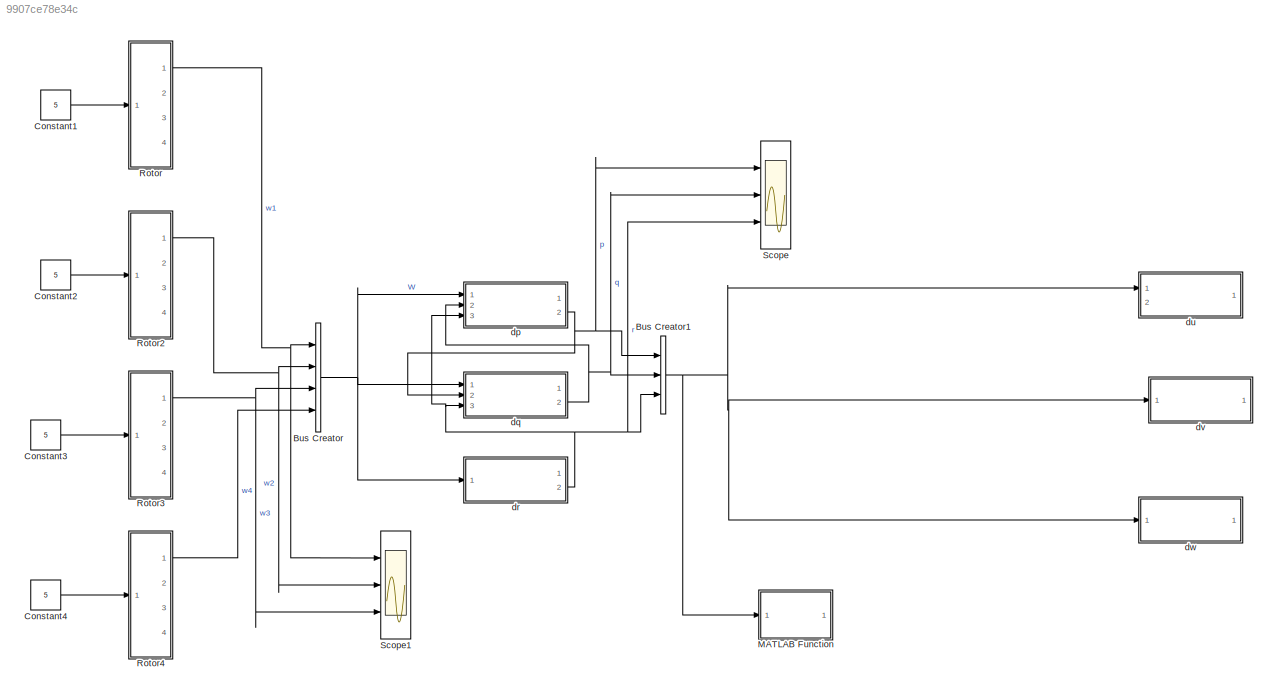
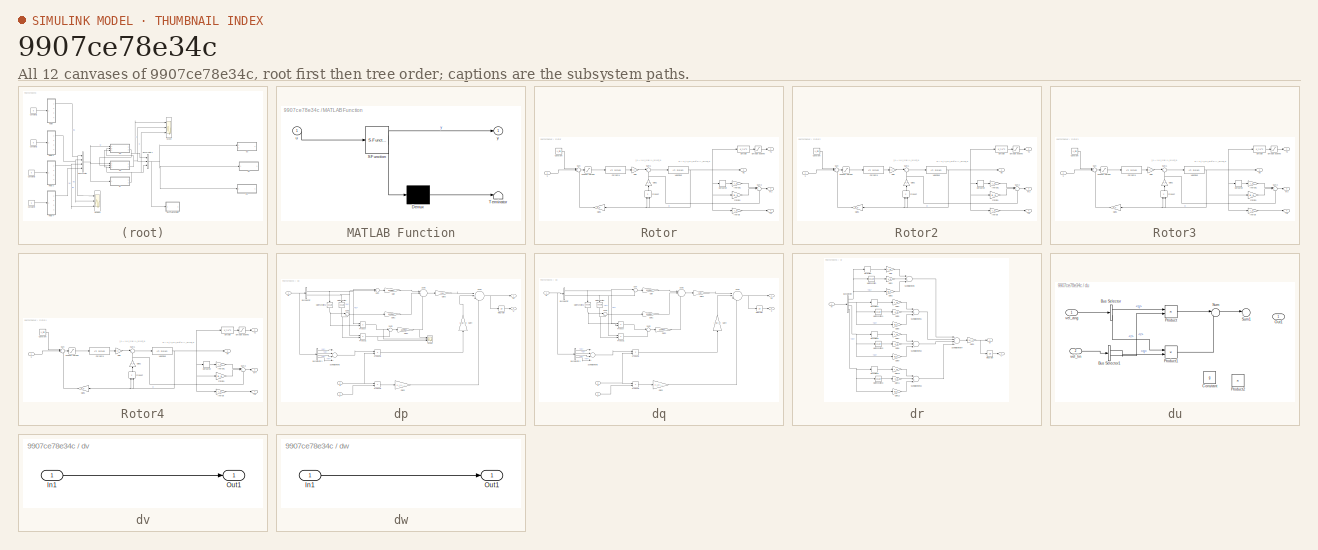
[diagram: thumbnail index - all 12 canvases of the model, root first then tree order]
MODEL slx_9907ce78e34c
KIND model
CONFIG InitFcn = k_d = 1.18e-7\nB_a = 1.23e-6\nu_min = 1.25\nk_t = 3.7e-3\nk_v = 7.8e-3\nL_a = 1.9e-3\nI_G = 1.5e-5\nR_a = 260e-3\nm = 0.694\nl_a = 0.18\nI_x = 5.87e-3\nI_y = 5.87e-3\nI_z = 10.73e-3\ngamma0 = -47.7e-3\ngamma1=1.3e-3\ngamma2=-1.44e-6\ngamma3=5.19e-4\ng=9.8\ndelta_t=1e-4\n\n
BLOCK [BusCreator] Bus Creator
  DisplayOption = bar
  Ports = [4, 1]
BLOCK [BusCreator] Bus Creator1
  DisplayOption = bar
  Inputs = 3
  Ports = [3, 1]
BLOCK [Constant] Constant1
  Value = 5
BLOCK [Constant] Constant2
  Value = 5
BLOCK [Constant] Constant3
  Value = 5
BLOCK [Constant] Constant4
  Value = 5
BLOCK [SubSystem] MATLAB Function
  ErrorFcn = Stateflow.Translate.translate
  FunctionWithSeparateData = off
  MaskHideContents = off
  MinAlgLoopOccurrences = off
  Opaque = off
  PermitHierarchicalResolution = ExplicitOnly
  Ports = [1, 1]
  PropExecContextOutsideSubsystem = off
  RTWSystemCode = Auto
  RequestExecContextInheritance = off
  SFBlockType = MATLAB Function
  TreatAsAtomicUnit = on
BLOCK [Demux] MATLAB Function/ Demux 
  Outputs = 1
  Ports = [1, 1]
BLOCK [S-Function] MATLAB Function/ SFunction 
  EnableBusSupport = off
  FunctionName = sf_sfun
  PortCounts = [1 2]
  Ports = [1, 2]
  Tag = Stateflow S-Function rotationmatrix 2
BLOCK [Terminator] MATLAB Function/ Terminator 
BLOCK [Inport] MATLAB Function/u
  IconDisplay = Port number
BLOCK [Outport] MATLAB Function/y
  IconDisplay = Port number
BLOCK [SubSystem] Rotor
  FunctionWithSeparateData = off
  MaskHideContents = off
  MinAlgLoopOccurrences = off
  Opaque = off
  Ports = [1, 4]
  PropExecContextOutsideSubsystem = off
  RTWSystemCode = Auto
  RequestExecContextInheritance = off
BLOCK [Constant] Rotor/Constant
  Value = u_min
BLOCK [Reference] Rotor/Corriente  REF=cstblocks/LTI System
  IC = []
  Ports = [1, 1]
  SourceBlock = cstblocks/LTI System
  SourceType = LTI Block
  sys = tf(1,[L_a R_a])
BLOCK [Derivative] Rotor/Derivative
BLOCK [Fcn] Rotor/Empuje
  Expr = k_t*u^2
BLOCK [Saturate] Rotor/Empuje positivo
  InputPortMap = u0
  LowerLimit = 0
  Ports = [1, 1]
  UpperLimit = inf
BLOCK [Gain] Rotor/Friccion
  Gain = B_a
  OutDataTypeStr = Inherit: Inherit via internal rule
  ParamDataTypeStr = Inherit: Inherit via internal rule
  SaturateOnIntegerOverflow = off
BLOCK [Gain] Rotor/Gain
  Gain = k_t
  OutDataTypeStr = Inherit: Inherit via internal rule
  ParamDataTypeStr = Inherit: Inherit via internal rule
  SaturateOnIntegerOverflow = off
BLOCK [Gain] Rotor/Gain1
  Gain = k_v
  OutDataTypeStr = Inherit: Inherit via internal rule
  ParamDataTypeStr = Inherit: Inherit via internal rule
  SaturateOnIntegerOverflow = off
BLOCK [Gain] Rotor/Gain2
  Gain = k_d
  OutDataTypeStr = Inherit: Inherit via internal rule
  ParamDataTypeStr = Inherit: Inherit via internal rule
  SaturateOnIntegerOverflow = off
BLOCK [Gain] Rotor/Inercia
  Gain = I_G
  OutDataTypeStr = Inherit: Inherit via internal rule
  ParamDataTypeStr = Inherit: Inherit via internal rule
  SaturateOnIntegerOverflow = off
BLOCK [Gain] Rotor/Inercia1
  Gain = I_G
  OutDataTypeStr = Inherit: Inherit via internal rule
  ParamDataTypeStr = Inherit: Inherit via internal rule
  SaturateOnIntegerOverflow = off
BLOCK [Outport] Rotor/L1
  IconDisplay = Port number
  Port = 4
BLOCK [Outport] Rotor/M1
  IconDisplay = Port number
  Port = 3
BLOCK [Saturate] Rotor/Positive Voltage
  InputPortMap = u0
  LowerLimit = 0
  Ports = [1, 1]
  UpperLimit = 30
BLOCK [Product] Rotor/Product
  InputSameDT = off
  OutDataTypeStr = Inherit: Inherit via internal rule
  Ports = [2, 1]
  RndMeth = Floor
  SaturateOnIntegerOverflow = off
BLOCK [Sum] Rotor/Sum
  IconShape = round
  InputSameDT = off
  Inputs = |++-
  OutDataTypeStr = Inherit: Inherit via internal rule
  Ports = [3, 1]
  SaturateOnIntegerOverflow = off
BLOCK [Sum] Rotor/Sum1
  IconShape = round
  InputSameDT = off
  Inputs = |+-
  OutDataTypeStr = Inherit: Inherit via internal rule
  Ports = [2, 1]
  SaturateOnIntegerOverflow = off
BLOCK [Sum] Rotor/Sum2
  IconShape = round
  InputSameDT = off
  Inputs = |+++
  OutDataTypeStr = Inherit: Inherit via internal rule
  Ports = [3, 1]
  SaturateOnIntegerOverflow = off
BLOCK [Outport] Rotor/T1
  IconDisplay = Port number
  Port = 2
BLOCK [Reference] Rotor/Velocidad  REF=cstblocks/LTI System
  IC = []
  Ports = [1, 1]
  SourceBlock = cstblocks/LTI System
  SourceType = LTI Block
  sys = tf(1,[I_G B_a])
BLOCK [Inport] Rotor/u
  IconDisplay = Port number
BLOCK [Outport] Rotor/w1
  IconDisplay = Port number
BLOCK [SubSystem] Rotor2
  FunctionWithSeparateData = off
  MaskHideContents = off
  MinAlgLoopOccurrences = off
  Opaque = off
  Ports = [1, 4]
  PropExecContextOutsideSubsystem = off
  RTWSystemCode = Auto
  RequestExecContextInheritance = off
BLOCK [Constant] Rotor2/Constant
  Value = u_min
BLOCK [Reference] Rotor2/Corriente  REF=cstblocks/LTI System
  IC = []
  Ports = [1, 1]
  SourceBlock = cstblocks/LTI System
  SourceType = LTI Block
  sys = tf(1,[L_a R_a])
BLOCK [Derivative] Rotor2/Derivative
BLOCK [Fcn] Rotor2/Empuje
  Expr = k_t*u^2
BLOCK [Saturate] Rotor2/Empuje positivo
  InputPortMap = u0
  LowerLimit = 0
  Ports = [1, 1]
  UpperLimit = inf
BLOCK [Gain] Rotor2/Friccion
  Gain = B_a
  OutDataTypeStr = Inherit: Inherit via internal rule
  ParamDataTypeStr = Inherit: Inherit via internal rule
  SaturateOnIntegerOverflow = off
BLOCK [Gain] Rotor2/Gain
  Gain = k_t
  OutDataTypeStr = Inherit: Inherit via internal rule
  ParamDataTypeStr = Inherit: Inherit via internal rule
  SaturateOnIntegerOverflow = off
BLOCK [Gain] Rotor2/Gain1
  Gain = k_v
  OutDataTypeStr = Inherit: Inherit via internal rule
  ParamDataTypeStr = Inherit: Inherit via internal rule
  SaturateOnIntegerOverflow = off
BLOCK [Gain] Rotor2/Gain2
  Gain = k_d
  OutDataTypeStr = Inherit: Inherit via internal rule
  ParamDataTypeStr = Inherit: Inherit via internal rule
  SaturateOnIntegerOverflow = off
BLOCK [Gain] Rotor2/Inercia
  Gain = I_G
  OutDataTypeStr = Inherit: Inherit via internal rule
  ParamDataTypeStr = Inherit: Inherit via internal rule
  SaturateOnIntegerOverflow = off
BLOCK [Gain] Rotor2/Inercia1
  Gain = I_G
  OutDataTypeStr = Inherit: Inherit via internal rule
  ParamDataTypeStr = Inherit: Inherit via internal rule
  SaturateOnIntegerOverflow = off
BLOCK [Outport] Rotor2/L2
  IconDisplay = Port number
  Port = 4
BLOCK [Outport] Rotor2/M2
  IconDisplay = Port number
  Port = 3
BLOCK [Saturate] Rotor2/Positive Voltage
  InputPortMap = u0
  LowerLimit = 0
  Ports = [1, 1]
  UpperLimit = 30
BLOCK [Product] Rotor2/Product
  InputSameDT = off
  OutDataTypeStr = Inherit: Inherit via internal rule
  Ports = [2, 1]
  RndMeth = Floor
  SaturateOnIntegerOverflow = off
BLOCK [Sum] Rotor2/Sum
  IconShape = round
  InputSameDT = off
  Inputs = |++-
  OutDataTypeStr = Inherit: Inherit via internal rule
  Ports = [3, 1]
  SaturateOnIntegerOverflow = off
BLOCK [Sum] Rotor2/Sum1
  IconShape = round
  InputSameDT = off
  Inputs = |+-
  OutDataTypeStr = Inherit: Inherit via internal rule
  Ports = [2, 1]
  SaturateOnIntegerOverflow = off
BLOCK [Sum] Rotor2/Sum2
  IconShape = round
  InputSameDT = off
  Inputs = |+++
  OutDataTypeStr = Inherit: Inherit via internal rule
  Ports = [3, 1]
  SaturateOnIntegerOverflow = off
BLOCK [Outport] Rotor2/T2
  IconDisplay = Port number
  Port = 2
BLOCK [Reference] Rotor2/Velocidad  REF=cstblocks/LTI System
  IC = []
  Ports = [1, 1]
  SourceBlock = cstblocks/LTI System
  SourceType = LTI Block
  sys = tf(1,[I_G B_a])
BLOCK [Inport] Rotor2/u
  IconDisplay = Port number
BLOCK [Outport] Rotor2/w2
  IconDisplay = Port number
BLOCK [SubSystem] Rotor3
  FunctionWithSeparateData = off
  MaskHideContents = off
  MinAlgLoopOccurrences = off
  Opaque = off
  Ports = [1, 4]
  PropExecContextOutsideSubsystem = off
  RTWSystemCode = Auto
  RequestExecContextInheritance = off
BLOCK [Constant] Rotor3/Constant
  Value = u_min
BLOCK [Reference] Rotor3/Corriente  REF=cstblocks/LTI System
  IC = []
  Ports = [1, 1]
  SourceBlock = cstblocks/LTI System
  SourceType = LTI Block
  sys = tf(1,[L_a R_a])
BLOCK [Derivative] Rotor3/Derivative
BLOCK [Fcn] Rotor3/Empuje
  Expr = k_t*u^2
BLOCK [Saturate] Rotor3/Empuje positivo
  InputPortMap = u0
  LowerLimit = 0
  Ports = [1, 1]
  UpperLimit = inf
BLOCK [Gain] Rotor3/Friccion
  Gain = B_a
  OutDataTypeStr = Inherit: Inherit via internal rule
  ParamDataTypeStr = Inherit: Inherit via internal rule
  SaturateOnIntegerOverflow = off
BLOCK [Gain] Rotor3/Gain
  Gain = k_t
  OutDataTypeStr = Inherit: Inherit via internal rule
  ParamDataTypeStr = Inherit: Inherit via internal rule
  SaturateOnIntegerOverflow = off
BLOCK [Gain] Rotor3/Gain1
  Gain = k_v
  OutDataTypeStr = Inherit: Inherit via internal rule
  ParamDataTypeStr = Inherit: Inherit via internal rule
  SaturateOnIntegerOverflow = off
BLOCK [Gain] Rotor3/Gain2
  Gain = k_d
  OutDataTypeStr = Inherit: Inherit via internal rule
  ParamDataTypeStr = Inherit: Inherit via internal rule
  SaturateOnIntegerOverflow = off
BLOCK [Gain] Rotor3/Inercia
  Gain = I_G
  OutDataTypeStr = Inherit: Inherit via internal rule
  ParamDataTypeStr = Inherit: Inherit via internal rule
  SaturateOnIntegerOverflow = off
BLOCK [Gain] Rotor3/Inercia1
  Gain = I_G
  OutDataTypeStr = Inherit: Inherit via internal rule
  ParamDataTypeStr = Inherit: Inherit via internal rule
  SaturateOnIntegerOverflow = off
BLOCK [Outport] Rotor3/L3
  IconDisplay = Port number
  Port = 4
BLOCK [Outport] Rotor3/M3
  IconDisplay = Port number
  Port = 3
BLOCK [Saturate] Rotor3/Positive Voltage
  InputPortMap = u0
  LowerLimit = 0
  Ports = [1, 1]
  UpperLimit = 30
BLOCK [Product] Rotor3/Product
  InputSameDT = off
  OutDataTypeStr = Inherit: Inherit via internal rule
  Ports = [2, 1]
  RndMeth = Floor
  SaturateOnIntegerOverflow = off
BLOCK [Sum] Rotor3/Sum
  IconShape = round
  InputSameDT = off
  Inputs = |++-
  OutDataTypeStr = Inherit: Inherit via internal rule
  Ports = [3, 1]
  SaturateOnIntegerOverflow = off
BLOCK [Sum] Rotor3/Sum1
  IconShape = round
  InputSameDT = off
  Inputs = |+-
  OutDataTypeStr = Inherit: Inherit via internal rule
  Ports = [2, 1]
  SaturateOnIntegerOverflow = off
BLOCK [Sum] Rotor3/Sum2
  IconShape = round
  InputSameDT = off
  Inputs = |+++
  OutDataTypeStr = Inherit: Inherit via internal rule
  Ports = [3, 1]
  SaturateOnIntegerOverflow = off
BLOCK [Outport] Rotor3/T3
  IconDisplay = Port number
  Port = 2
BLOCK [Reference] Rotor3/Velocidad  REF=cstblocks/LTI System
  IC = []
  Ports = [1, 1]
  SourceBlock = cstblocks/LTI System
  SourceType = LTI Block
  sys = tf(1,[I_G B_a])
BLOCK [Inport] Rotor3/u
  IconDisplay = Port number
BLOCK [Outport] Rotor3/w3
  IconDisplay = Port number
BLOCK [SubSystem] Rotor4
  FunctionWithSeparateData = off
  MaskHideContents = off
  MinAlgLoopOccurrences = off
  Opaque = off
  Ports = [1, 4]
  PropExecContextOutsideSubsystem = off
  RTWSystemCode = Auto
  RequestExecContextInheritance = off
BLOCK [Constant] Rotor4/Constant
  Value = u_min
BLOCK [Reference] Rotor4/Corriente  REF=cstblocks/LTI System
  IC = []
  Ports = [1, 1]
  SourceBlock = cstblocks/LTI System
  SourceType = LTI Block
  sys = tf(1,[L_a R_a])
BLOCK [Derivative] Rotor4/Derivative
BLOCK [Fcn] Rotor4/Empuje
  Expr = k_t*u^2
BLOCK [Saturate] Rotor4/Empuje positivo
  InputPortMap = u0
  LowerLimit = 0
  Ports = [1, 1]
  UpperLimit = inf
BLOCK [Gain] Rotor4/Friccion
  Gain = B_a
  OutDataTypeStr = Inherit: Inherit via internal rule
  ParamDataTypeStr = Inherit: Inherit via internal rule
  SaturateOnIntegerOverflow = off
BLOCK [Gain] Rotor4/Gain
  Gain = k_t
  OutDataTypeStr = Inherit: Inherit via internal rule
  ParamDataTypeStr = Inherit: Inherit via internal rule
  SaturateOnIntegerOverflow = off
BLOCK [Gain] Rotor4/Gain1
  Gain = k_v
  OutDataTypeStr = Inherit: Inherit via internal rule
  ParamDataTypeStr = Inherit: Inherit via internal rule
  SaturateOnIntegerOverflow = off
BLOCK [Gain] Rotor4/Gain2
  Gain = k_d
  OutDataTypeStr = Inherit: Inherit via internal rule
  ParamDataTypeStr = Inherit: Inherit via internal rule
  SaturateOnIntegerOverflow = off
BLOCK [Gain] Rotor4/Inercia
  Gain = I_G
  OutDataTypeStr = Inherit: Inherit via internal rule
  ParamDataTypeStr = Inherit: Inherit via internal rule
  SaturateOnIntegerOverflow = off
BLOCK [Gain] Rotor4/Inercia1
  Gain = I_G
  OutDataTypeStr = Inherit: Inherit via internal rule
  ParamDataTypeStr = Inherit: Inherit via internal rule
  SaturateOnIntegerOverflow = off
BLOCK [Outport] Rotor4/L4
  IconDisplay = Port number
  Port = 4
BLOCK [Outport] Rotor4/M4
  IconDisplay = Port number
  Port = 3
BLOCK [Saturate] Rotor4/Positive Voltage
  InputPortMap = u0
  LowerLimit = 0
  Ports = [1, 1]
  UpperLimit = 30
BLOCK [Product] Rotor4/Product
  InputSameDT = off
  OutDataTypeStr = Inherit: Inherit via internal rule
  Ports = [2, 1]
  RndMeth = Floor
  SaturateOnIntegerOverflow = off
BLOCK [Sum] Rotor4/Sum
  IconShape = round
  InputSameDT = off
  Inputs = |++-
  OutDataTypeStr = Inherit: Inherit via internal rule
  Ports = [3, 1]
  SaturateOnIntegerOverflow = off
BLOCK [Sum] Rotor4/Sum1
  IconShape = round
  InputSameDT = off
  Inputs = |+-
  OutDataTypeStr = Inherit: Inherit via internal rule
  Ports = [2, 1]
  SaturateOnIntegerOverflow = off
BLOCK [Sum] Rotor4/Sum2
  IconShape = round
  InputSameDT = off
  Inputs = |+++
  OutDataTypeStr = Inherit: Inherit via internal rule
  Ports = [3, 1]
  SaturateOnIntegerOverflow = off
BLOCK [Outport] Rotor4/T4
  IconDisplay = Port number
  Port = 2
BLOCK [Reference] Rotor4/Velocidad  REF=cstblocks/LTI System
  IC = []
  Ports = [1, 1]
  SourceBlock = cstblocks/LTI System
  SourceType = LTI Block
  sys = tf(1,[I_G B_a])
BLOCK [Inport] Rotor4/u
  IconDisplay = Port number
BLOCK [Outport] Rotor4/w4
  IconDisplay = Port number
BLOCK [Scope] Scope
  DataFormat = StructureWithTime
  Floating = off
  LimitDataPoints = off
  NumInputPorts = 3
  Ports = [3]
  SampleTime = 0
  ShowLegends = off
  YMax = 5~5~5
  YMin = -5~-5~-5
BLOCK [Scope] Scope1
  DataFormat = StructureWithTime
  Floating = off
  LimitDataPoints = off
  NumInputPorts = 3
  Ports = [3]
  SampleTime = 0
  SaveName = ScopeData3
  ShowLegends = off
  YMax = 5~5~5
  YMin = -5~-5~-5
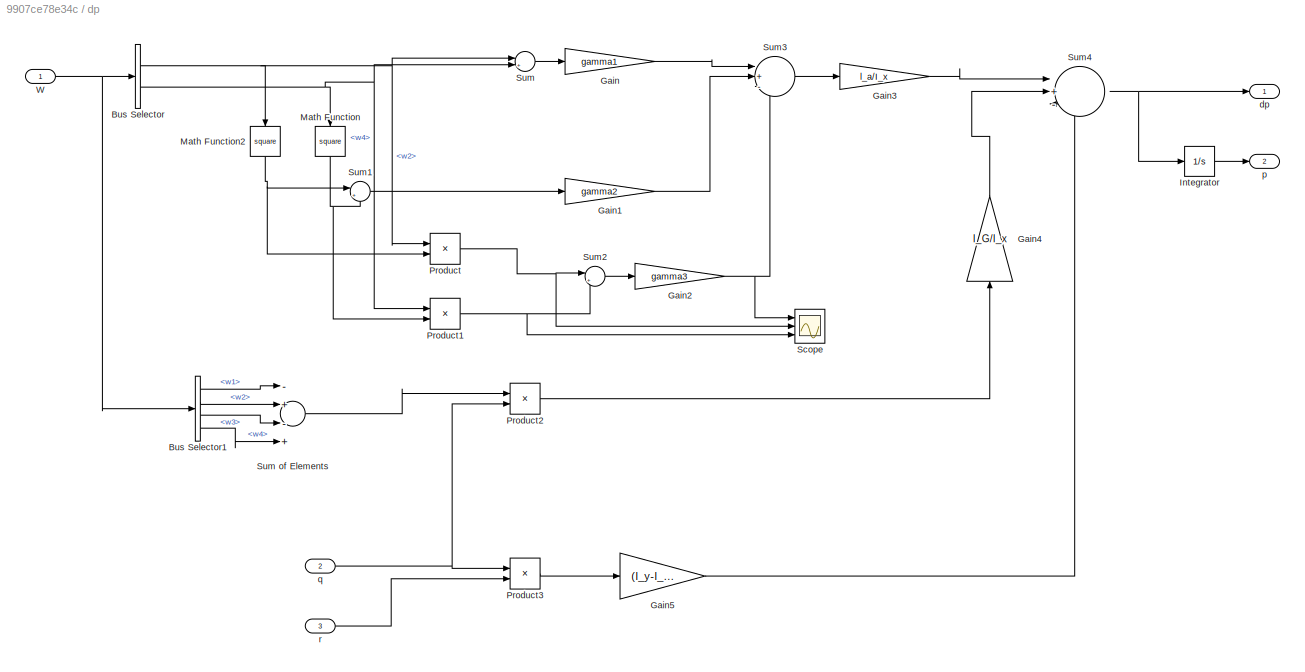
BLOCK [SubSystem] dp
  FunctionWithSeparateData = off
  MaskHideContents = off
  MinAlgLoopOccurrences = off
  Opaque = off
  Ports = [3, 2]
  PropExecContextOutsideSubsystem = off
  RTWSystemCode = Auto
  RequestExecContextInheritance = off
BLOCK [BusSelector] dp/Bus Selector
  OutputSignals = w2,w4
  Ports = [1, 2]
BLOCK [BusSelector] dp/Bus Selector1
  OutputSignals = w1,w2,w3,w4
  Ports = [1, 4]
BLOCK [Gain] dp/Gain
  Gain = gamma1
  OutDataTypeStr = Inherit: Inherit via internal rule
  ParamDataTypeStr = Inherit: Inherit via internal rule
  SaturateOnIntegerOverflow = off
BLOCK [Gain] dp/Gain1
  Gain = gamma2
  OutDataTypeStr = Inherit: Inherit via internal rule
  ParamDataTypeStr = Inherit: Inherit via internal rule
  SaturateOnIntegerOverflow = off
BLOCK [Gain] dp/Gain2
  Gain = gamma3
  OutDataTypeStr = Inherit: Inherit via internal rule
  ParamDataTypeStr = Inherit: Inherit via internal rule
  SaturateOnIntegerOverflow = off
BLOCK [Gain] dp/Gain3
  Gain = l_a/I_x
  OutDataTypeStr = Inherit: Inherit via internal rule
  ParamDataTypeStr = Inherit: Inherit via internal rule
  SaturateOnIntegerOverflow = off
BLOCK [Gain] dp/Gain4
  Gain = I_G/I_x
  OutDataTypeStr = Inherit: Inherit via internal rule
  ParamDataTypeStr = Inherit: Inherit via internal rule
  SaturateOnIntegerOverflow = off
BLOCK [Gain] dp/Gain5
  Gain = (I_y-I_z)/I_x
  OutDataTypeStr = Inherit: Inherit via internal rule
  ParamDataTypeStr = Inherit: Inherit via internal rule
  SaturateOnIntegerOverflow = off
BLOCK [Integrator] dp/Integrator
  Ports = [1, 1]
BLOCK [Math] dp/Math Function
  Operator = square
  Ports = [1, 1]
BLOCK [Math] dp/Math Function2
  Operator = square
  Ports = [1, 1]
BLOCK [Product] dp/Product
  InputSameDT = off
  OutDataTypeStr = Inherit: Inherit via internal rule
  Ports = [2, 1]
  RndMeth = Floor
  SaturateOnIntegerOverflow = off
BLOCK [Product] dp/Product1
  InputSameDT = off
  OutDataTypeStr = Inherit: Inherit via internal rule
  Ports = [2, 1]
  RndMeth = Floor
  SaturateOnIntegerOverflow = off
BLOCK [Product] dp/Product2
  InputSameDT = off
  OutDataTypeStr = Inherit: Inherit via internal rule
  Ports = [2, 1]
  RndMeth = Floor
  SaturateOnIntegerOverflow = off
BLOCK [Product] dp/Product3
  InputSameDT = off
  OutDataTypeStr = Inherit: Inherit via internal rule
  Ports = [2, 1]
  RndMeth = Floor
  SaturateOnIntegerOverflow = off
BLOCK [Scope] dp/Scope
  DataFormat = StructureWithTime
  Floating = off
  LimitDataPoints = off
  NumInputPorts = 3
  Ports = [3]
  SampleTime = 0
  SaveName = ScopeData2
  ShowLegends = off
  YMax = 5~5~5
  YMin = -5~-5~-5
BLOCK [Sum] dp/Sum
  IconShape = round
  InputSameDT = off
  Inputs = |+-
  OutDataTypeStr = Inherit: Inherit via internal rule
  Ports = [2, 1]
  SaturateOnIntegerOverflow = off
BLOCK [Sum] dp/Sum of Elements
  InputSameDT = off
  Inputs = -+-+
  OutDataTypeStr = Inherit: Inherit via internal rule
  Ports = [4, 1]
  SaturateOnIntegerOverflow = off
BLOCK [Sum] dp/Sum1
  IconShape = round
  InputSameDT = off
  Inputs = |+-
  OutDataTypeStr = Inherit: Inherit via internal rule
  Ports = [2, 1]
  SaturateOnIntegerOverflow = off
BLOCK [Sum] dp/Sum2
  IconShape = round
  InputSameDT = off
  Inputs = |+-
  OutDataTypeStr = Inherit: Inherit via internal rule
  Ports = [2, 1]
  SaturateOnIntegerOverflow = off
BLOCK [Sum] dp/Sum3
  IconShape = round
  InputSameDT = off
  Inputs = |+-+
  OutDataTypeStr = Inherit: Inherit via internal rule
  Ports = [3, 1]
  SaturateOnIntegerOverflow = off
BLOCK [Sum] dp/Sum4
  IconShape = round
  InputSameDT = off
  Inputs = |+-+
  OutDataTypeStr = Inherit: Inherit via internal rule
  Ports = [3, 1]
  SaturateOnIntegerOverflow = off
BLOCK [Inport] dp/W
  IconDisplay = Port number
BLOCK [Outport] dp/dp
  IconDisplay = Port number
BLOCK [Outport] dp/p
  IconDisplay = Port number
  Port = 2
BLOCK [Inport] dp/q 
  IconDisplay = Port number
  Port = 2
BLOCK [Inport] dp/r
  IconDisplay = Port number
  Port = 3
BLOCK [SubSystem] dq
  FunctionWithSeparateData = off
  MaskHideContents = off
  MinAlgLoopOccurrences = off
  Opaque = off
  Ports = [3, 2]
  PropExecContextOutsideSubsystem = off
  RTWSystemCode = Auto
  RequestExecContextInheritance = off
BLOCK [BusSelector] dq/Bus Selector
  OutputSignals = w3,w1
  Ports = [1, 2]
BLOCK [BusSelector] dq/Bus Selector1
  OutputSignals = w1,w2,w3,w4
  Ports = [1, 4]
BLOCK [Gain] dq/Gain
  Gain = gamma1
  OutDataTypeStr = Inherit: Inherit via internal rule
  ParamDataTypeStr = Inherit: Inherit via internal rule
  SaturateOnIntegerOverflow = off
BLOCK [Gain] dq/Gain1
  Gain = gamma2
  OutDataTypeStr = Inherit: Inherit via internal rule
  ParamDataTypeStr = Inherit: Inherit via internal rule
  SaturateOnIntegerOverflow = off
BLOCK [Gain] dq/Gain2
  Gain = gamma3
  OutDataTypeStr = Inherit: Inherit via internal rule
  ParamDataTypeStr = Inherit: Inherit via internal rule
  SaturateOnIntegerOverflow = off
BLOCK [Gain] dq/Gain3
  Gain = l_a/I_y
  OutDataTypeStr = Inherit: Inherit via internal rule
  ParamDataTypeStr = Inherit: Inherit via internal rule
  SaturateOnIntegerOverflow = off
BLOCK [Gain] dq/Gain4
  Gain = I_G/I_y
  OutDataTypeStr = Inherit: Inherit via internal rule
  ParamDataTypeStr = Inherit: Inherit via internal rule
  SaturateOnIntegerOverflow = off
BLOCK [Gain] dq/Gain5
  Gain = (I_x-I_z)/I_y
  OutDataTypeStr = Inherit: Inherit via internal rule
  ParamDataTypeStr = Inherit: Inherit via internal rule
  SaturateOnIntegerOverflow = off
BLOCK [Integrator] dq/Integrator
  Ports = [1, 1]
BLOCK [Math] dq/Math Function
  Operator = square
  Ports = [1, 1]
BLOCK [Math] dq/Math Function2
  Operator = square
  Ports = [1, 1]
BLOCK [Product] dq/Product
  InputSameDT = off
  OutDataTypeStr = Inherit: Inherit via internal rule
  Ports = [2, 1]
  RndMeth = Floor
  SaturateOnIntegerOverflow = off
BLOCK [Product] dq/Product1
  InputSameDT = off
  OutDataTypeStr = Inherit: Inherit via internal rule
  Ports = [2, 1]
  RndMeth = Floor
  SaturateOnIntegerOverflow = off
BLOCK [Product] dq/Product2
  InputSameDT = off
  OutDataTypeStr = Inherit: Inherit via internal rule
  Ports = [2, 1]
  RndMeth = Floor
  SaturateOnIntegerOverflow = off
BLOCK [Product] dq/Product3
  InputSameDT = off
  OutDataTypeStr = Inherit: Inherit via internal rule
  Ports = [2, 1]
  RndMeth = Floor
  SaturateOnIntegerOverflow = off
BLOCK [Sum] dq/Sum
  IconShape = round
  InputSameDT = off
  Inputs = |+-
  OutDataTypeStr = Inherit: Inherit via internal rule
  Ports = [2, 1]
  SaturateOnIntegerOverflow = off
BLOCK [Sum] dq/Sum of Elements
  InputSameDT = off
  Inputs = -+-+
  OutDataTypeStr = Inherit: Inherit via internal rule
  Ports = [4, 1]
  SaturateOnIntegerOverflow = off
BLOCK [Sum] dq/Sum1
  IconShape = round
  InputSameDT = off
  Inputs = |+-
  OutDataTypeStr = Inherit: Inherit via internal rule
  Ports = [2, 1]
  SaturateOnIntegerOverflow = off
BLOCK [Sum] dq/Sum2
  IconShape = round
  InputSameDT = off
  Inputs = |+-
  OutDataTypeStr = Inherit: Inherit via internal rule
  Ports = [2, 1]
  SaturateOnIntegerOverflow = off
BLOCK [Sum] dq/Sum3
  IconShape = round
  InputSameDT = off
  Inputs = |+-+
  OutDataTypeStr = Inherit: Inherit via internal rule
  Ports = [3, 1]
  SaturateOnIntegerOverflow = off
BLOCK [Sum] dq/Sum4
  IconShape = round
  InputSameDT = off
  Inputs = |+-+
  OutDataTypeStr = Inherit: Inherit via internal rule
  Ports = [3, 1]
  SaturateOnIntegerOverflow = off
BLOCK [Inport] dq/W
  IconDisplay = Port number
BLOCK [Outport] dq/dq
  IconDisplay = Port number
BLOCK [Inport] dq/p 
  IconDisplay = Port number
  Port = 2
BLOCK [Outport] dq/q
  IconDisplay = Port number
  Port = 2
BLOCK [Inport] dq/r
  IconDisplay = Port number
  Port = 3
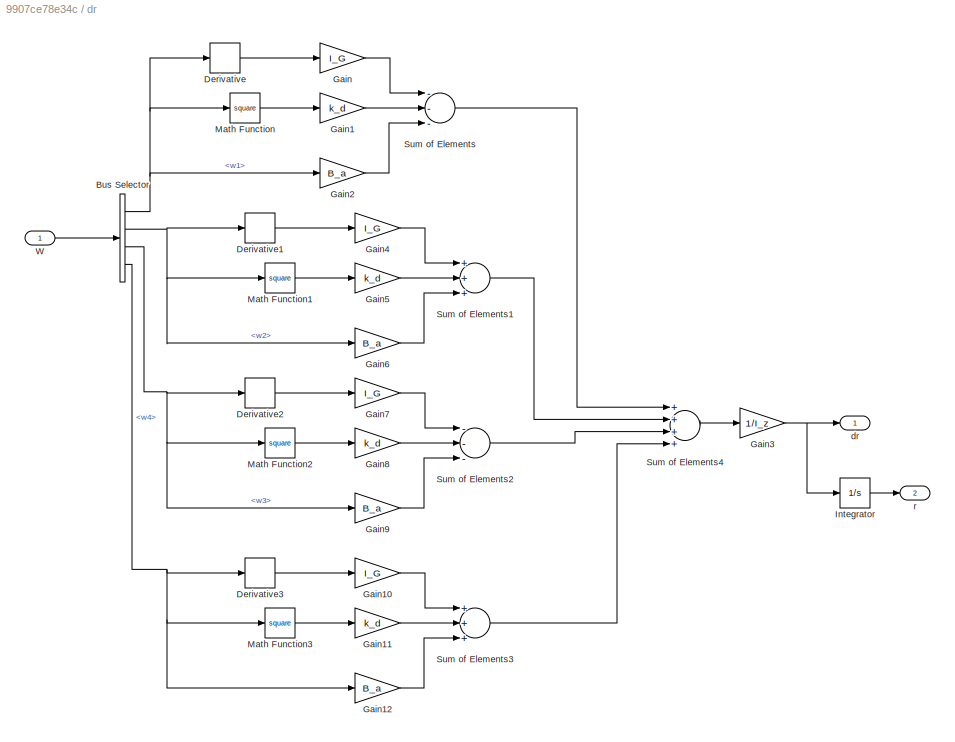
BLOCK [SubSystem] dr
  FunctionWithSeparateData = off
  MaskHideContents = off
  MinAlgLoopOccurrences = off
  Opaque = off
  Ports = [1, 2]
  PropExecContextOutsideSubsystem = off
  RTWSystemCode = Auto
  RequestExecContextInheritance = off
BLOCK [BusSelector] dr/Bus Selector
  OutputSignals = w1,w2,w3,w4
  Ports = [1, 4]
BLOCK [Derivative] dr/Derivative
BLOCK [Derivative] dr/Derivative1
BLOCK [Derivative] dr/Derivative2
BLOCK [Derivative] dr/Derivative3
BLOCK [Gain] dr/Gain
  Gain = I_G
  OutDataTypeStr = Inherit: Inherit via internal rule
  ParamDataTypeStr = Inherit: Inherit via internal rule
  SaturateOnIntegerOverflow = off
BLOCK [Gain] dr/Gain1
  Gain = k_d
  OutDataTypeStr = Inherit: Inherit via internal rule
  ParamDataTypeStr = Inherit: Inherit via internal rule
  SaturateOnIntegerOverflow = off
BLOCK [Gain] dr/Gain10
  Gain = I_G
  OutDataTypeStr = Inherit: Inherit via internal rule
  ParamDataTypeStr = Inherit: Inherit via internal rule
  SaturateOnIntegerOverflow = off
BLOCK [Gain] dr/Gain11
  Gain = k_d
  OutDataTypeStr = Inherit: Inherit via internal rule
  ParamDataTypeStr = Inherit: Inherit via internal rule
  SaturateOnIntegerOverflow = off
BLOCK [Gain] dr/Gain12
  Gain = B_a
  OutDataTypeStr = Inherit: Inherit via internal rule
  ParamDataTypeStr = Inherit: Inherit via internal rule
  SaturateOnIntegerOverflow = off
BLOCK [Gain] dr/Gain2
  Gain = B_a
  OutDataTypeStr = Inherit: Inherit via internal rule
  ParamDataTypeStr = Inherit: Inherit via internal rule
  SaturateOnIntegerOverflow = off
BLOCK [Gain] dr/Gain3
  Gain = 1/I_z
  OutDataTypeStr = Inherit: Inherit via internal rule
  ParamDataTypeStr = Inherit: Inherit via internal rule
  SaturateOnIntegerOverflow = off
BLOCK [Gain] dr/Gain4
  Gain = I_G
  OutDataTypeStr = Inherit: Inherit via internal rule
  ParamDataTypeStr = Inherit: Inherit via internal rule
  SaturateOnIntegerOverflow = off
BLOCK [Gain] dr/Gain5
  Gain = k_d
  OutDataTypeStr = Inherit: Inherit via internal rule
  ParamDataTypeStr = Inherit: Inherit via internal rule
  SaturateOnIntegerOverflow = off
BLOCK [Gain] dr/Gain6
  Gain = B_a
  OutDataTypeStr = Inherit: Inherit via internal rule
  ParamDataTypeStr = Inherit: Inherit via internal rule
  SaturateOnIntegerOverflow = off
BLOCK [Gain] dr/Gain7
  Gain = I_G
  OutDataTypeStr = Inherit: Inherit via internal rule
  ParamDataTypeStr = Inherit: Inherit via internal rule
  SaturateOnIntegerOverflow = off
BLOCK [Gain] dr/Gain8
  Gain = k_d
  OutDataTypeStr = Inherit: Inherit via internal rule
  ParamDataTypeStr = Inherit: Inherit via internal rule
  SaturateOnIntegerOverflow = off
BLOCK [Gain] dr/Gain9
  Gain = B_a
  OutDataTypeStr = Inherit: Inherit via internal rule
  ParamDataTypeStr = Inherit: Inherit via internal rule
  SaturateOnIntegerOverflow = off
BLOCK [Integrator] dr/Integrator
  Ports = [1, 1]
BLOCK [Math] dr/Math Function
  Operator = square
  Ports = [1, 1]
BLOCK [Math] dr/Math Function1
  Operator = square
  Ports = [1, 1]
BLOCK [Math] dr/Math Function2
  Operator = square
  Ports = [1, 1]
BLOCK [Math] dr/Math Function3
  Operator = square
  Ports = [1, 1]
BLOCK [Sum] dr/Sum of Elements
  InputSameDT = off
  Inputs = ---
  OutDataTypeStr = Inherit: Inherit via internal rule
  Ports = [3, 1]
  SaturateOnIntegerOverflow = off
BLOCK [Sum] dr/Sum of Elements1
  InputSameDT = off
  Inputs = +++
  OutDataTypeStr = Inherit: Inherit via internal rule
  Ports = [3, 1]
  SaturateOnIntegerOverflow = off
BLOCK [Sum] dr/Sum of Elements2
  InputSameDT = off
  Inputs = ---
  OutDataTypeStr = Inherit: Inherit via internal rule
  Ports = [3, 1]
  SaturateOnIntegerOverflow = off
BLOCK [Sum] dr/Sum of Elements3
  InputSameDT = off
  Inputs = +++
  OutDataTypeStr = Inherit: Inherit via internal rule
  Ports = [3, 1]
  SaturateOnIntegerOverflow = off
BLOCK [Sum] dr/Sum of Elements4
  InputSameDT = off
  Inputs = ++++
  OutDataTypeStr = Inherit: Inherit via internal rule
  Ports = [4, 1]
  SaturateOnIntegerOverflow = off
BLOCK [Inport] dr/W 
  IconDisplay = Port number
BLOCK [Outport] dr/dr
  IconDisplay = Port number
BLOCK [Outport] dr/r
  IconDisplay = Port number
  Port = 2
BLOCK [SubSystem] du
  FunctionWithSeparateData = off
  MaskHideContents = off
  MinAlgLoopOccurrences = off
  Opaque = off
  Ports = [2, 1]
  PropExecContextOutsideSubsystem = off
  RTWSystemCode = Auto
  RequestExecContextInheritance = off
BLOCK [BusSelector] du/Bus Selector
  OutputSignals = q,r
  Ports = [1, 2]
BLOCK [BusSelector] du/Bus Selector1
  OutputSignals = q,r
  Ports = [1, 2]
BLOCK [Constant] du/Constant
  Value = g
BLOCK [Outport] du/Out1
  IconDisplay = Port number
BLOCK [Product] du/Product
  InputSameDT = off
  OutDataTypeStr = Inherit: Inherit via internal rule
  Ports = [2, 1]
  RndMeth = Floor
  SaturateOnIntegerOverflow = off
BLOCK [Product] du/Product1
  InputSameDT = off
  OutDataTypeStr = Inherit: Inherit via internal rule
  Ports = [2, 1]
  RndMeth = Floor
  SaturateOnIntegerOverflow = off
BLOCK [Product] du/Product2
  InputSameDT = off
  OutDataTypeStr = Inherit: Inherit via internal rule
  Ports = [2, 1]
  RndMeth = Floor
  SaturateOnIntegerOverflow = off
BLOCK [Sum] du/Sum
  IconShape = round
  InputSameDT = off
  Inputs = |-+
  OutDataTypeStr = Inherit: Inherit via internal rule
  Ports = [2, 1]
  SaturateOnIntegerOverflow = off
BLOCK [Sum] du/Sum1
  IconShape = round
  InputSameDT = off
  Inputs = |+-
  OutDataTypeStr = Inherit: Inherit via internal rule
  Ports = [2, 1]
  SaturateOnIntegerOverflow = off
BLOCK [Inport] du/vel_ang
  IconDisplay = Port number
BLOCK [Inport] du/vel_lin 
  IconDisplay = Port number
  Port = 2
BLOCK [SubSystem] dv
  FunctionWithSeparateData = off
  MaskHideContents = off
  MinAlgLoopOccurrences = off
  Opaque = off
  Ports = [1, 1]
  PropExecContextOutsideSubsystem = off
  RTWSystemCode = Auto
  RequestExecContextInheritance = off
BLOCK [Inport] dv/In1
  IconDisplay = Port number
BLOCK [Outport] dv/Out1
  IconDisplay = Port number
BLOCK [SubSystem] dw
  FunctionWithSeparateData = off
  MaskHideContents = off
  MinAlgLoopOccurrences = off
  Opaque = off
  Ports = [1, 1]
  PropExecContextOutsideSubsystem = off
  RTWSystemCode = Auto
  RequestExecContextInheritance = off
BLOCK [Inport] dw/In1
  IconDisplay = Port number
BLOCK [Outport] dw/Out1
  IconDisplay = Port number
ANNOTATION Rotor: i_a = (u-k_v*w)/(L_a*s+R_a)
ANNOTATION Rotor: w = (k_t*i_a-k_d*w^2)/(I_G*s+B_a)
ANNOTATION Rotor2: i_a = (u-k_v*w)/(L_a*s+R_a)
ANNOTATION Rotor2: w = (k_t*i_a-k_d*w^2)/(I_G*s+B_a)
ANNOTATION Rotor3: i_a = (u-k_v*w)/(L_a*s+R_a)
ANNOTATION Rotor3: w = (k_t*i_a-k_d*w^2)/(I_G*s+B_a)
ANNOTATION Rotor4: i_a = (u-k_v*w)/(L_a*s+R_a)
ANNOTATION Rotor4: w = (k_t*i_a-k_d*w^2)/(I_G*s+B_a)
NET Bus Creator1:1 -> MATLAB Function:1, du:1, dv:1, dw:1
NET Bus Creator:1 -> dp:1, dq:1, dr:1
LINE Constant1:1 -> Rotor:1
LINE Constant2:1 -> Rotor2:1
LINE Constant3:1 -> Rotor3:1
LINE Constant4:1 -> Rotor4:1
LINE Rotor/Constant:1 -> Rotor/Sum:1
LINE Rotor/Corriente:1 -> Rotor/Gain:1
LINE Rotor/Derivative:1 -> Rotor/Inercia1:1
LINE Rotor/Empuje positivo:1 -> Rotor/T1:1
LINE Rotor/Empuje:1 -> Rotor/Empuje positivo:1
LINE Rotor/Friccion:1 -> Rotor/Sum2:2
LINE Rotor/Gain1:1 -> Rotor/Sum:3
NET Rotor/Gain2:1 -> Rotor/Sum1:2, Rotor/Sum2:3
LINE Rotor/Gain:1 -> Rotor/Sum1:1
LINE Rotor/Inercia1:1 -> Rotor/Sum2:1
LINE Rotor/Inercia:1 -> Rotor/L1:1
LINE Rotor/Positive Voltage:1 -> Rotor/Corriente:1
LINE Rotor/Product:1 -> Rotor/Gain2:1
LINE Rotor/Sum1:1 -> Rotor/Velocidad:1
LINE Rotor/Sum2:1 -> Rotor/M1:1
LINE Rotor/Sum:1 -> Rotor/Positive Voltage:1
NET Rotor/Velocidad:1 -> Rotor/Derivative:1, Rotor/Empuje:1, Rotor/Friccion:1, Rotor/Gain1:1, Rotor/Inercia:1, Rotor/Product:1, Rotor/Product:2, Rotor/w1:1
LINE Rotor/u:1 -> Rotor/Sum:2
LINE Rotor2/Constant:1 -> Rotor2/Sum:1
LINE Rotor2/Corriente:1 -> Rotor2/Gain:1
LINE Rotor2/Derivative:1 -> Rotor2/Inercia1:1
LINE Rotor2/Empuje positivo:1 -> Rotor2/T2:1
LINE Rotor2/Empuje:1 -> Rotor2/Empuje positivo:1
LINE Rotor2/Friccion:1 -> Rotor2/Sum2:2
LINE Rotor2/Gain1:1 -> Rotor2/Sum:3
NET Rotor2/Gain2:1 -> Rotor2/Sum1:2, Rotor2/Sum2:3
LINE Rotor2/Gain:1 -> Rotor2/Sum1:1
LINE Rotor2/Inercia1:1 -> Rotor2/Sum2:1
LINE Rotor2/Inercia:1 -> Rotor2/L2:1
LINE Rotor2/Positive Voltage:1 -> Rotor2/Corriente:1
LINE Rotor2/Product:1 -> Rotor2/Gain2:1
LINE Rotor2/Sum1:1 -> Rotor2/Velocidad:1
LINE Rotor2/Sum2:1 -> Rotor2/M2:1
LINE Rotor2/Sum:1 -> Rotor2/Positive Voltage:1
NET Rotor2/Velocidad:1 -> Rotor2/Derivative:1, Rotor2/Empuje:1, Rotor2/Friccion:1, Rotor2/Gain1:1, Rotor2/Inercia:1, Rotor2/Product:1, Rotor2/Product:2, Rotor2/w2:1
LINE Rotor2/u:1 -> Rotor2/Sum:2
NET Rotor2:1 -> Bus Creator:2, Scope1:2
LINE Rotor3/Constant:1 -> Rotor3/Sum:1
LINE Rotor3/Corriente:1 -> Rotor3/Gain:1
LINE Rotor3/Derivative:1 -> Rotor3/Inercia1:1
LINE Rotor3/Empuje positivo:1 -> Rotor3/T3:1
LINE Rotor3/Empuje:1 -> Rotor3/Empuje positivo:1
LINE Rotor3/Friccion:1 -> Rotor3/Sum2:2
LINE Rotor3/Gain1:1 -> Rotor3/Sum:3
NET Rotor3/Gain2:1 -> Rotor3/Sum1:2, Rotor3/Sum2:3
LINE Rotor3/Gain:1 -> Rotor3/Sum1:1
LINE Rotor3/Inercia1:1 -> Rotor3/Sum2:1
LINE Rotor3/Inercia:1 -> Rotor3/L3:1
LINE Rotor3/Positive Voltage:1 -> Rotor3/Corriente:1
LINE Rotor3/Product:1 -> Rotor3/Gain2:1
LINE Rotor3/Sum1:1 -> Rotor3/Velocidad:1
LINE Rotor3/Sum2:1 -> Rotor3/M3:1
LINE Rotor3/Sum:1 -> Rotor3/Positive Voltage:1
NET Rotor3/Velocidad:1 -> Rotor3/Derivative:1, Rotor3/Empuje:1, Rotor3/Friccion:1, Rotor3/Gain1:1, Rotor3/Inercia:1, Rotor3/Product:1, Rotor3/Product:2, Rotor3/w3:1
LINE Rotor3/u:1 -> Rotor3/Sum:2
NET Rotor3:1 -> Bus Creator:3, Scope1:3
LINE Rotor4/Constant:1 -> Rotor4/Sum:1
LINE Rotor4/Corriente:1 -> Rotor4/Gain:1
LINE Rotor4/Derivative:1 -> Rotor4/Inercia1:1
LINE Rotor4/Empuje positivo:1 -> Rotor4/T4:1
LINE Rotor4/Empuje:1 -> Rotor4/Empuje positivo:1
LINE Rotor4/Friccion:1 -> Rotor4/Sum2:2
LINE Rotor4/Gain1:1 -> Rotor4/Sum:3
NET Rotor4/Gain2:1 -> Rotor4/Sum1:2, Rotor4/Sum2:3
LINE Rotor4/Gain:1 -> Rotor4/Sum1:1
LINE Rotor4/Inercia1:1 -> Rotor4/Sum2:1
LINE Rotor4/Inercia:1 -> Rotor4/L4:1
LINE Rotor4/Positive Voltage:1 -> Rotor4/Corriente:1
LINE Rotor4/Product:1 -> Rotor4/Gain2:1
LINE Rotor4/Sum1:1 -> Rotor4/Velocidad:1
LINE Rotor4/Sum2:1 -> Rotor4/M4:1
LINE Rotor4/Sum:1 -> Rotor4/Positive Voltage:1
NET Rotor4/Velocidad:1 -> Rotor4/Derivative:1, Rotor4/Empuje:1, Rotor4/Friccion:1, Rotor4/Gain1:1, Rotor4/Inercia:1, Rotor4/Product:1, Rotor4/Product:2, Rotor4/w4:1
LINE Rotor4/u:1 -> Rotor4/Sum:2
LINE Rotor4:1 -> Bus Creator:4
NET Rotor:1 -> Bus Creator:1, Scope1:1
LINE dp/Bus Selector1:1 -> dp/Sum of Elements:1
LINE dp/Bus Selector1:2 -> dp/Sum of Elements:2
LINE dp/Bus Selector1:3 -> dp/Sum of Elements:3
LINE dp/Bus Selector1:4 -> dp/Sum of Elements:4
NET dp/Bus Selector:1 -> dp/Math Function2:1, dp/Product:1, dp/Sum:1
NET dp/Bus Selector:2 -> dp/Math Function:1, dp/Product1:1, dp/Sum:2
LINE dp/Gain1:1 -> dp/Sum3:2
NET dp/Gain2:1 -> dp/Scope:1, dp/Sum3:3
LINE dp/Gain3:1 -> dp/Sum4:1
LINE dp/Gain4:1 -> dp/Sum4:2
LINE dp/Gain5:1 -> dp/Sum4:3
LINE dp/Gain:1 -> dp/Sum3:1
LINE dp/Integrator:1 -> dp/p:1
NET dp/Math Function2:1 -> dp/Product:2, dp/Sum1:1
NET dp/Math Function:1 -> dp/Product1:2, dp/Sum1:2
NET dp/Product1:1 -> dp/Scope:3, dp/Sum2:2
LINE dp/Product2:1 -> dp/Gain4:1
LINE dp/Product3:1 -> dp/Gain5:1
NET dp/Product:1 -> dp/Scope:2, dp/Sum2:1
LINE dp/Sum of Elements:1 -> dp/Product2:1
LINE dp/Sum1:1 -> dp/Gain1:1
LINE dp/Sum2:1 -> dp/Gain2:1
LINE dp/Sum3:1 -> dp/Gain3:1
NET dp/Sum4:1 -> dp/Integrator:1, dp/dp:1
LINE dp/Sum:1 -> dp/Gain:1
NET dp/W:1 -> dp/Bus Selector1:1, dp/Bus Selector:1
NET dp/q :1 -> dp/Product2:2, dp/Product3:1
LINE dp/r:1 -> dp/Product3:2
NET dp:2 -> Bus Creator1:1, Scope:1, dq:2
LINE dq/Bus Selector1:1 -> dq/Sum of Elements:1
LINE dq/Bus Selector1:2 -> dq/Sum of Elements:2
LINE dq/Bus Selector1:3 -> dq/Sum of Elements:3
LINE dq/Bus Selector1:4 -> dq/Sum of Elements:4
NET dq/Bus Selector:1 -> dq/Math Function2:1, dq/Product:1, dq/Sum:1
NET dq/Bus Selector:2 -> dq/Math Function:1, dq/Product1:1, dq/Sum:2
LINE dq/Gain1:1 -> dq/Sum3:2
LINE dq/Gain2:1 -> dq/Sum3:3
LINE dq/Gain3:1 -> dq/Sum4:1
LINE dq/Gain4:1 -> dq/Sum4:2
LINE dq/Gain5:1 -> dq/Sum4:3
LINE dq/Gain:1 -> dq/Sum3:1
LINE dq/Integrator:1 -> dq/q:1
NET dq/Math Function2:1 -> dq/Product:2, dq/Sum1:1
NET dq/Math Function:1 -> dq/Product1:2, dq/Sum1:2
LINE dq/Product1:1 -> dq/Sum2:2
LINE dq/Product2:1 -> dq/Gain4:1
LINE dq/Product3:1 -> dq/Gain5:1
LINE dq/Product:1 -> dq/Sum2:1
LINE dq/Sum of Elements:1 -> dq/Product2:1
LINE dq/Sum1:1 -> dq/Gain1:1
LINE dq/Sum2:1 -> dq/Gain2:1
LINE dq/Sum3:1 -> dq/Gain3:1
NET dq/Sum4:1 -> dq/Integrator:1, dq/dq:1
LINE dq/Sum:1 -> dq/Gain:1
NET dq/W:1 -> dq/Bus Selector1:1, dq/Bus Selector:1
NET dq/p :1 -> dq/Product2:2, dq/Product3:1
LINE dq/r:1 -> dq/Product3:2
NET dq:2 -> Bus Creator1:2, Scope:2, dp:2
NET dr/Bus Selector:1 -> dr/Derivative:1, dr/Gain2:1, dr/Math Function:1
NET dr/Bus Selector:2 -> dr/Derivative1:1, dr/Gain6:1, dr/Math Function1:1
NET dr/Bus Selector:3 -> dr/Derivative2:1, dr/Gain9:1, dr/Math Function2:1
NET dr/Bus Selector:4 -> dr/Derivative3:1, dr/Gain12:1, dr/Math Function3:1
LINE dr/Derivative1:1 -> dr/Gain4:1
LINE dr/Derivative2:1 -> dr/Gain7:1
LINE dr/Derivative3:1 -> dr/Gain10:1
LINE dr/Derivative:1 -> dr/Gain:1
LINE dr/Gain10:1 -> dr/Sum of Elements3:1
LINE dr/Gain11:1 -> dr/Sum of Elements3:2
LINE dr/Gain12:1 -> dr/Sum of Elements3:3
LINE dr/Gain1:1 -> dr/Sum of Elements:2
LINE dr/Gain2:1 -> dr/Sum of Elements:3
NET dr/Gain3:1 -> dr/Integrator:1, dr/dr:1
LINE dr/Gain4:1 -> dr/Sum of Elements1:1
LINE dr/Gain5:1 -> dr/Sum of Elements1:2
LINE dr/Gain6:1 -> dr/Sum of Elements1:3
LINE dr/Gain7:1 -> dr/Sum of Elements2:1
LINE dr/Gain8:1 -> dr/Sum of Elements2:2
LINE dr/Gain9:1 -> dr/Sum of Elements2:3
LINE dr/Gain:1 -> dr/Sum of Elements:1
LINE dr/Integrator:1 -> dr/r:1
LINE dr/Math Function1:1 -> dr/Gain5:1
LINE dr/Math Function2:1 -> dr/Gain8:1
LINE dr/Math Function3:1 -> dr/Gain11:1
LINE dr/Math Function:1 -> dr/Gain1:1
LINE dr/Sum of Elements1:1 -> dr/Sum of Elements4:2
LINE dr/Sum of Elements2:1 -> dr/Sum of Elements4:3
LINE dr/Sum of Elements3:1 -> dr/Sum of Elements4:4
LINE dr/Sum of Elements4:1 -> dr/Gain3:1
LINE dr/Sum of Elements:1 -> dr/Sum of Elements4:1
LINE dr/W :1 -> dr/Bus Selector:1
NET dr:2 -> Bus Creator1:3, Scope:3, dp:3, dq:3
LINE du/Bus Selector1:1 -> du/Product1:2
LINE du/Bus Selector1:2 -> du/Product:2
LINE du/Bus Selector:1 -> du/Product:1
LINE du/Bus Selector:2 -> du/Product1:1
LINE du/Product1:1 -> du/Sum:2
LINE du/Product:1 -> du/Sum:1
LINE du/Sum:1 -> du/Sum1:1
LINE du/vel_ang:1 -> du/Bus Selector:1
LINE du/vel_lin :1 -> du/Bus Selector1:1
LINE dv/In1:1 -> dv/Out1:1
LINE dw/In1:1 -> dw/Out1:1
note: NET lines group one-source signal fan-out (src -> all destinations, sorted); 1:1 wires keep LINE
